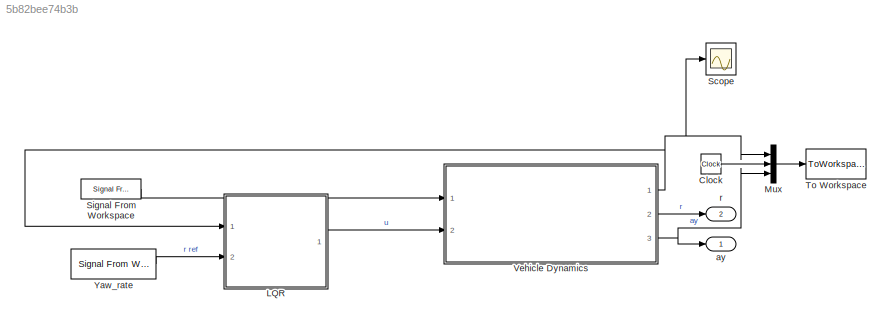
MODEL slx_5b82bee74b3b
KIND model
CONFIG AbsTol = auto
CONFIG EnableMultiTasking = off
CONFIG FixedStep = -1
CONFIG MaxStep = auto
CONFIG MinStep = auto
CONFIG RelTol = 1e-3
CONFIG SampleTimeConstraint = Unconstrained
CONFIG Solver = VariableStepAuto
CONFIG SolverName = VariableStepAuto
CONFIG StartTime = 0.0
CONFIG StopTime = 24.149
BLOCK [Clock] Clock
  Decimation = 26
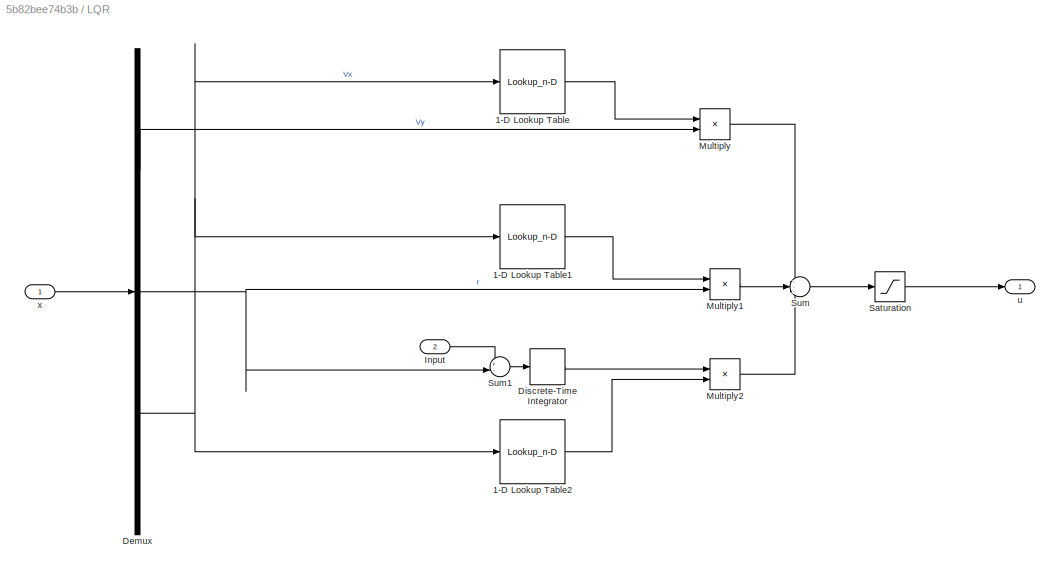
BLOCK [SubSystem] LQR
  Ports = [2, 1]
  RequestExecContextInheritance = off
BLOCK [Lookup_n-D] LQR/1-D Lookup Table
  BreakpointsForDimension1 = [-5:5]
  BreakpointsForDimension1FirstPoint = 5
  BreakpointsForDimension1Spacing = 5
  BreakpointsSpecification = Even spacing
  InternalRulePriority = Speed
  NumberOfTableDimensions = 1
  Ports = [1, 1]
  RndMeth = Simplest
  Table = K1
BLOCK [Lookup_n-D] LQR/1-D Lookup Table1
  BreakpointsForDimension1 = [-5:5]
  BreakpointsForDimension1FirstPoint = 5
  BreakpointsForDimension1Spacing = 5
  BreakpointsSpecification = Even spacing
  InternalRulePriority = Speed
  NumberOfTableDimensions = 1
  Ports = [1, 1]
  RndMeth = Simplest
  Table = K2
BLOCK [Lookup_n-D] LQR/1-D Lookup Table2
  BreakpointsForDimension1 = [-5:5]
  BreakpointsForDimension1FirstPoint = 5
  BreakpointsForDimension1Spacing = 5
  BreakpointsSpecification = Even spacing
  InternalRulePriority = Speed
  NumberOfTableDimensions = 1
  Ports = [1, 1]
  RndMeth = Simplest
  Table = K3
BLOCK [Demux] LQR/Demux
  DisplayOption = bar
  Outputs = 3
  Ports = [1, 3]
BLOCK [DiscreteIntegrator] LQR/Discrete-Time Integrator
  ICPrevOutput = DiscIntNeverNeededParam
  ICPrevScaledInput = DiscIntNeverNeededParam
  InitialConditionSetting = Auto
  Ports = [1, 1]
  SampleTime = 0.001
BLOCK [Inport] LQR/Input
  IconDisplay = Port number
  Port = 2
BLOCK [Product] LQR/Multiply
  InputSameDT = off
  OutDataTypeStr = Inherit: Inherit via internal rule
  Ports = [2, 1]
  RndMeth = Floor
  SaturateOnIntegerOverflow = off
BLOCK [Product] LQR/Multiply1
  InputSameDT = off
  OutDataTypeStr = Inherit: Inherit via internal rule
  Ports = [2, 1]
  RndMeth = Floor
  SaturateOnIntegerOverflow = off
BLOCK [Product] LQR/Multiply2
  InputSameDT = off
  OutDataTypeStr = Inherit: Inherit via internal rule
  Ports = [2, 1]
  RndMeth = Floor
  SaturateOnIntegerOverflow = off
BLOCK [Saturate] LQR/Saturation
  InputPortMap = u0
  LowerLimit = -0.45
  Ports = [1, 1]
  UpperLimit = 0.45
BLOCK [Sum] LQR/Sum
  IconShape = round
  InputSameDT = off
  Inputs = ---
  OutDataTypeStr = Inherit: Inherit via internal rule
  Ports = [3, 1]
  SaturateOnIntegerOverflow = off
BLOCK [Sum] LQR/Sum1
  IconShape = round
  InputSameDT = off
  Inputs = +-
  OutDataTypeStr = Inherit: Inherit via internal rule
  Ports = [2, 1]
  SaturateOnIntegerOverflow = off
BLOCK [Outport] LQR/u
  IconDisplay = Port number
BLOCK [Inport] LQR/x
  IconDisplay = Port number
BLOCK [Mux] Mux
  DisplayOption = bar
  Inputs = 3
  Ports = [3, 1]
BLOCK [Scope] Scope
  Floating = off
  NumInputPorts = 1
  Ports = [1]
  ScopeSpecificationString = Simulink.scopes.TimeScopeBlockCfg('CurrentConfiguration', extmgr.ConfigurationSet(extmgr.Configuration('Core','General UI',true),extmgr.Configuration('Core','Source UI',true),extmgr.Configuration('Sources','WiredSimulink',true),extmgr.Configuration('Visuals','Time Domain',true,'SerializedDisplays',{struct('MinYLimReal','-4.11829','MaxYLimReal','24.88416','YLabelReal','','MinYLimMag','0.00000','Max...<+1390ch>
BLOCK [Reference] Signal From Workspace  REF=dspsrcs4/Signal From
Workspace
  Ports = [0, 1]
  SourceBlock = dspsrcs4/Signal From\nWorkspace
  SourceProductBaseCode = DS
  SourceProductName = DSP System Toolbox
  SourceType = Signal From Workspace
BLOCK [ToWorkspace] To Workspace
  FixptAsFi = on
  MaxDataPoints = inf
  Ports = [1]
  SampleTime = 0.01
  Save2DSignal = 2-D array (concatenate along first dimension)
  VariableName = tracklqrgs
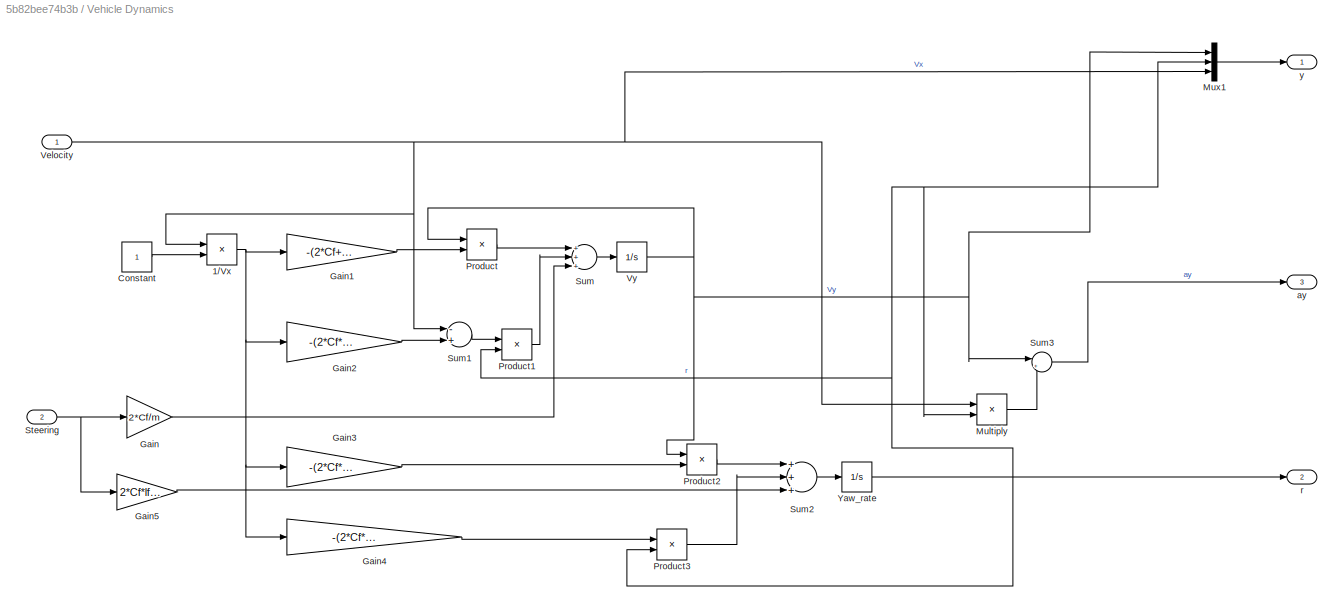
BLOCK [SubSystem] Vehicle Dynamics
  Ports = [2, 3]
  RequestExecContextInheritance = off
BLOCK [Product] Vehicle Dynamics/1//Vx
  InputSameDT = off
  Inputs = /*
  OutDataTypeStr = Inherit: Inherit via internal rule
  Ports = [2, 1]
  RndMeth = Floor
  SaturateOnIntegerOverflow = off
BLOCK [Constant] Vehicle Dynamics/Constant
BLOCK [Gain] Vehicle Dynamics/Gain
  Gain = 2*Cf/m
  OutDataTypeStr = Inherit: Inherit via internal rule
  ParamDataTypeStr = Inherit: Inherit via internal rule
  SaturateOnIntegerOverflow = off
BLOCK [Gain] Vehicle Dynamics/Gain1
  Gain = -(2*Cf+2*Cr)/m
  OutDataTypeStr = Inherit: Inherit via internal rule
  ParamDataTypeStr = Inherit: Inherit via internal rule
  SaturateOnIntegerOverflow = off
BLOCK [Gain] Vehicle Dynamics/Gain2
  Gain = -(2*Cf*lf-2*Cr*lr)/m
  OutDataTypeStr = Inherit: Inherit via internal rule
  ParamDataTypeStr = Inherit: Inherit via internal rule
  SaturateOnIntegerOverflow = off
BLOCK [Gain] Vehicle Dynamics/Gain3
  Gain = -(2*Cf*lf-2*Cr*lr)/Iz
  OutDataTypeStr = Inherit: Inherit via internal rule
  ParamDataTypeStr = Inherit: Inherit via internal rule
  SaturateOnIntegerOverflow = off
BLOCK [Gain] Vehicle Dynamics/Gain4
  Gain = -(2*Cf*lf^2+2*Cr*lr^2)/Iz
  OutDataTypeStr = Inherit: Inherit via internal rule
  ParamDataTypeStr = Inherit: Inherit via internal rule
  SaturateOnIntegerOverflow = off
BLOCK [Gain] Vehicle Dynamics/Gain5
  Gain = 2*Cf*lf/Iz
  OutDataTypeStr = Inherit: Inherit via internal rule
  ParamDataTypeStr = Inherit: Inherit via internal rule
  SaturateOnIntegerOverflow = off
BLOCK [Product] Vehicle Dynamics/Multiply
  InputSameDT = off
  OutDataTypeStr = Inherit: Inherit via internal rule
  Ports = [2, 1]
  RndMeth = Floor
  SaturateOnIntegerOverflow = off
BLOCK [Mux] Vehicle Dynamics/Mux1
  DisplayOption = bar
  Inputs = 3
  Ports = [3, 1]
BLOCK [Product] Vehicle Dynamics/Product
  InputSameDT = off
  OutDataTypeStr = Inherit: Inherit via internal rule
  Ports = [2, 1]
  RndMeth = Floor
  SaturateOnIntegerOverflow = off
BLOCK [Product] Vehicle Dynamics/Product1
  InputSameDT = off
  OutDataTypeStr = Inherit: Inherit via internal rule
  Ports = [2, 1]
  RndMeth = Floor
  SaturateOnIntegerOverflow = off
BLOCK [Product] Vehicle Dynamics/Product2
  InputSameDT = off
  OutDataTypeStr = Inherit: Inherit via internal rule
  Ports = [2, 1]
  RndMeth = Floor
  SaturateOnIntegerOverflow = off
BLOCK [Product] Vehicle Dynamics/Product3
  InputSameDT = off
  OutDataTypeStr = Inherit: Inherit via internal rule
  Ports = [2, 1]
  RndMeth = Floor
  SaturateOnIntegerOverflow = off
BLOCK [Inport] Vehicle Dynamics/Steering
  IconDisplay = Port number
  Port = 2
BLOCK [Sum] Vehicle Dynamics/Sum
  InputSameDT = off
  Inputs = +++
  OutDataTypeStr = Inherit: Inherit via internal rule
  Ports = [3, 1]
  SaturateOnIntegerOverflow = off
BLOCK [Sum] Vehicle Dynamics/Sum1
  InputSameDT = off
  Inputs = -+
  OutDataTypeStr = Inherit: Inherit via internal rule
  Ports = [2, 1]
  SaturateOnIntegerOverflow = off
BLOCK [Sum] Vehicle Dynamics/Sum2
  InputSameDT = off
  Inputs = +++
  OutDataTypeStr = Inherit: Inherit via internal rule
  Ports = [3, 1]
  SaturateOnIntegerOverflow = off
BLOCK [Sum] Vehicle Dynamics/Sum3
  IconShape = round
  InputSameDT = off
  Inputs = |++
  OutDataTypeStr = Inherit: Inherit via internal rule
  Ports = [2, 1]
  SaturateOnIntegerOverflow = off
BLOCK [Inport] Vehicle Dynamics/Velocity
  IconDisplay = Port number
BLOCK [Integrator] Vehicle Dynamics/Vy
  Ports = [1, 1]
BLOCK [Integrator] Vehicle Dynamics/Yaw_rate 
  Ports = [1, 1]
BLOCK [Outport] Vehicle Dynamics/ay
  IconDisplay = Port number
  Port = 3
BLOCK [Outport] Vehicle Dynamics/r 
  IconDisplay = Port number
  Port = 2
BLOCK [Outport] Vehicle Dynamics/y 
  IconDisplay = Port number
BLOCK [Reference] Yaw_rate  REF=dspsrcs4/Signal From
Workspace
  Ports = [0, 1]
  SourceBlock = dspsrcs4/Signal From\nWorkspace
  SourceProductBaseCode = DS
  SourceProductName = DSP System Toolbox
  SourceType = Signal From Workspace
BLOCK [Outport] ay
  IconDisplay = Port number
BLOCK [Outport] r
  IconDisplay = Port number
  Port = 2
LINE Clock:1 -> Mux:2
LINE LQR/1-D Lookup Table1:1 -> LQR/Multiply1:1
LINE LQR/1-D Lookup Table2:1 -> LQR/Multiply2:2
LINE LQR/1-D Lookup Table:1 -> LQR/Multiply:1
LINE LQR/Demux:1 -> LQR/Multiply:2
NET LQR/Demux:2 -> LQR/Multiply1:2, LQR/Sum1:2
NET LQR/Demux:3 -> LQR/1-D Lookup Table1:1, LQR/1-D Lookup Table2:1, LQR/1-D Lookup Table:1
LINE LQR/Discrete-Time Integrator:1 -> LQR/Multiply2:1
LINE LQR/Input:1 -> LQR/Sum1:1
LINE LQR/Multiply1:1 -> LQR/Sum:2
LINE LQR/Multiply2:1 -> LQR/Sum:3
LINE LQR/Multiply:1 -> LQR/Sum:1
LINE LQR/Saturation:1 -> LQR/u:1
LINE LQR/Sum1:1 -> LQR/Discrete-Time Integrator:1
LINE LQR/Sum:1 -> LQR/Saturation:1
LINE LQR/x:1 -> LQR/Demux:1
LINE LQR:1 -> Vehicle Dynamics:2
LINE Mux:1 -> To Workspace:1
LINE Signal From Workspace:1 -> Vehicle Dynamics:1
NET Vehicle Dynamics/1//Vx:1 -> Vehicle Dynamics/Gain1:1, Vehicle Dynamics/Gain2:1, Vehicle Dynamics/Gain3:1, Vehicle Dynamics/Gain4:1
LINE Vehicle Dynamics/Constant:1 -> Vehicle Dynamics/1//Vx:2
LINE Vehicle Dynamics/Gain1:1 -> Vehicle Dynamics/Product:2
LINE Vehicle Dynamics/Gain2:1 -> Vehicle Dynamics/Sum1:2
LINE Vehicle Dynamics/Gain3:1 -> Vehicle Dynamics/Product2:2
LINE Vehicle Dynamics/Gain4:1 -> Vehicle Dynamics/Product3:1
LINE Vehicle Dynamics/Gain5:1 -> Vehicle Dynamics/Sum2:3
LINE Vehicle Dynamics/Gain:1 -> Vehicle Dynamics/Sum:3
LINE Vehicle Dynamics/Multiply:1 -> Vehicle Dynamics/Sum3:2
LINE Vehicle Dynamics/Mux1:1 -> Vehicle Dynamics/y :1
LINE Vehicle Dynamics/Product1:1 -> Vehicle Dynamics/Sum:2
LINE Vehicle Dynamics/Product2:1 -> Vehicle Dynamics/Sum2:1
LINE Vehicle Dynamics/Product3:1 -> Vehicle Dynamics/Sum2:2
LINE Vehicle Dynamics/Product:1 -> Vehicle Dynamics/Sum:1
NET Vehicle Dynamics/Steering:1 -> Vehicle Dynamics/Gain5:1, Vehicle Dynamics/Gain:1
LINE Vehicle Dynamics/Sum1:1 -> Vehicle Dynamics/Product1:1
LINE Vehicle Dynamics/Sum2:1 -> Vehicle Dynamics/Yaw_rate :1
LINE Vehicle Dynamics/Sum3:1 -> Vehicle Dynamics/ay:1
LINE Vehicle Dynamics/Sum:1 -> Vehicle Dynamics/Vy:1
NET Vehicle Dynamics/Velocity:1 -> Vehicle Dynamics/1//Vx:1, Vehicle Dynamics/Multiply:1, Vehicle Dynamics/Mux1:3, Vehicle Dynamics/Sum1:1
NET Vehicle Dynamics/Vy:1 -> Vehicle Dynamics/Mux1:1, Vehicle Dynamics/Product2:1, Vehicle Dynamics/Product:1, Vehicle Dynamics/Sum3:1
NET Vehicle Dynamics/Yaw_rate :1 -> Vehicle Dynamics/Multiply:2, Vehicle Dynamics/Mux1:2, Vehicle Dynamics/Product1:2, Vehicle Dynamics/Product3:2, Vehicle Dynamics/r :1
NET Vehicle Dynamics:1 -> LQR:1, Mux:1, Scope:1
LINE Vehicle Dynamics:2 -> r:1
NET Vehicle Dynamics:3 -> Mux:3, ay:1
LINE Yaw_rate:1 -> LQR:2
note: NET lines group one-source signal fan-out (src -> all destinations, sorted); 1:1 wires keep LINE
